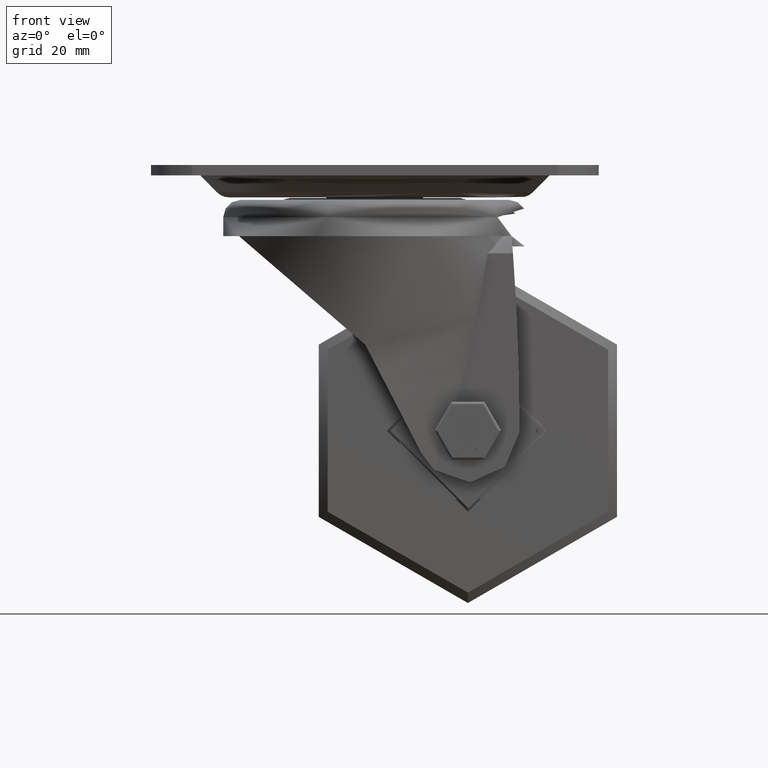
[diagram: clean part render]
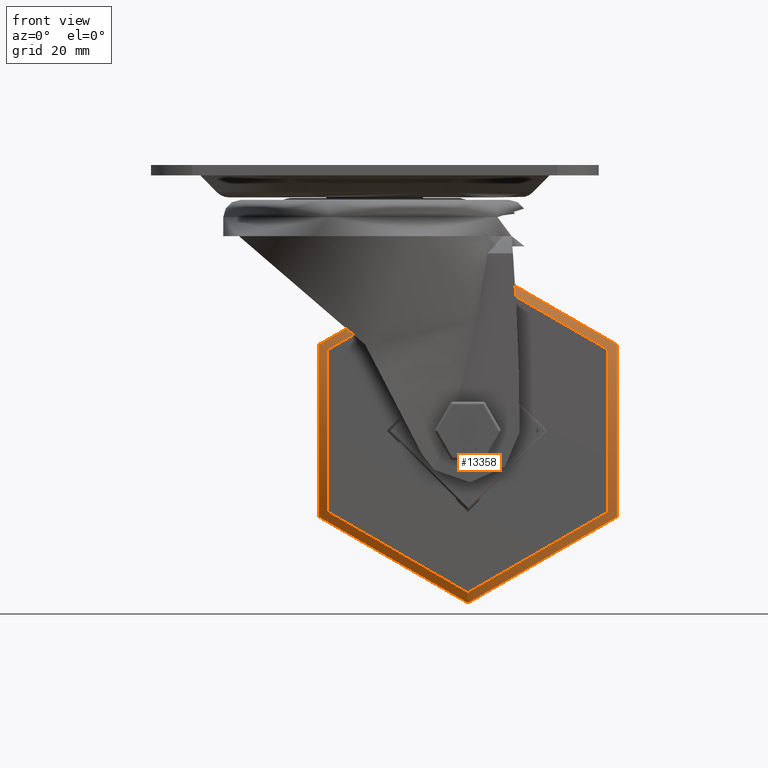
[diagram: same view with one face highlighted and labeled with its STEP entity id]
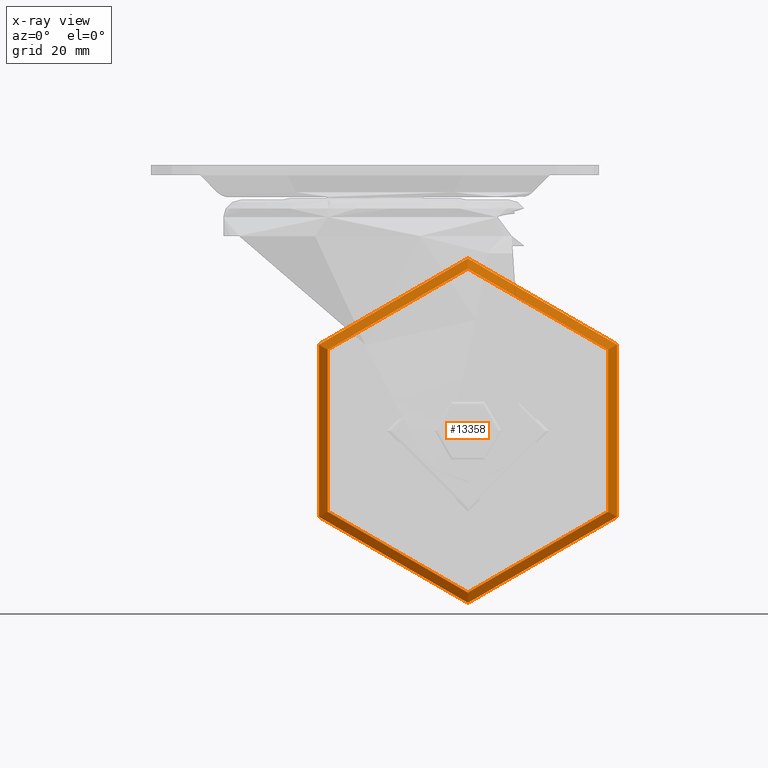
[diagram: x-ray of the same camera — body ghosted, the highlighted face saturated]
A machine part, front view. The second image highlights one B-rep face of the part: STEP entity #13358.
The next image is the same camera in x-ray: the body ghosted, the highlighted face saturated — about 0% of this face is hidden behind the body in this view.
In plain terms, the highlighted conical surface has half-angle 50.194 deg.
Its self-contained STEP definition (entity closure, byte-faithful):
#1717=FACE_OUTER_BOUND('',#2504,.T.);
#2504=EDGE_LOOP('',(#9260,#9261,#9262,#9263));
#3391=LINE('',#18634,#4413);
#4413=VECTOR('',#15415,48.5);
#5435=CIRCLE('',#14309,50.);
#5436=CIRCLE('',#14310,47.);
#5877=VERTEX_POINT('',#18631);
#5878=VERTEX_POINT('',#18633);
#7213=EDGE_CURVE('',#5877,#5877,#5435,.T.);
#7214=EDGE_CURVE('',#5877,#5878,#3391,.T.);
#7215=EDGE_CURVE('',#5878,#5878,#5436,.T.);
#9260=ORIENTED_EDGE('',*,*,#7213,.T.);
#9261=ORIENTED_EDGE('',*,*,#7214,.T.);
#9262=ORIENTED_EDGE('',*,*,#7215,.F.);
#9263=ORIENTED_EDGE('',*,*,#7214,.F.);
#13354=CONICAL_SURFACE('',#14308,48.5,0.876058050598193);
#13358=ADVANCED_FACE('',(#1717),#13354,.T.);
#14308=AXIS2_PLACEMENT_3D('',#18630,#15411,#15412);
#14309=AXIS2_PLACEMENT_3D('',#18632,#15413,#15414);
#14310=AXIS2_PLACEMENT_3D('',#18635,#15416,#15417);
#15411=DIRECTION('center_axis',(1.,0.,0.));
#15412=DIRECTION('ref_axis',(0.,0.,1.));
#15413=DIRECTION('center_axis',(-1.,0.,0.));
#15414=DIRECTION('ref_axis',(0.,0.,1.));
#15415=DIRECTION('',(-0.64018439966448,-9.4079973109581E-17,0.768221279597376));
#15416=DIRECTION('center_axis',(-1.,0.,0.));
#15417=DIRECTION('ref_axis',(0.,0.,1.));
#18630=CARTESIAN_POINT('Origin',(-18.75,0.,0.));
#18631=CARTESIAN_POINT('',(-17.5,6.12323399573676E-15,-50.));
#18632=CARTESIAN_POINT('Origin',(-17.5,0.,0.));
#18633=CARTESIAN_POINT('',(-20.,5.75583995599256E-15,-47.));
#18634=CARTESIAN_POINT('',(-18.75,5.93953697586466E-15,-48.5));
#18635=CARTESIAN_POINT('Origin',(-20.,0.,0.));